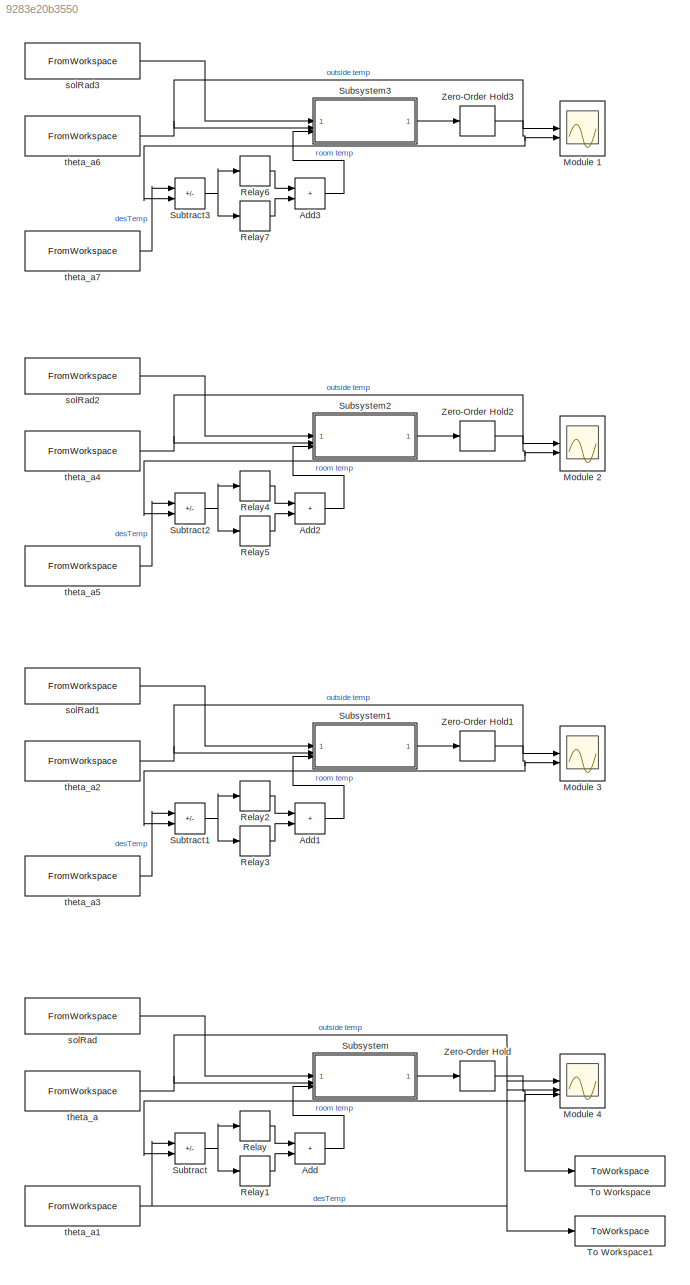
MODEL slx_9283e20b3550
KIND model
CONFIG AbsTol = auto
CONFIG EnableMultiTasking = off
CONFIG FixedStep = auto
CONFIG MaxStep = auto
CONFIG MinStep = auto
CONFIG RelTol = 1e-3
CONFIG SampleTimeConstraint = Unconstrained
CONFIG SolverName = VariableStepAuto
CONFIG StartTime = 0.0
CONFIG StopTime = H
BLOCK [Sum] Add
  IconShape = rectangular
BLOCK [Sum] Add1
  IconShape = rectangular
BLOCK [Sum] Add2
  IconShape = rectangular
BLOCK [Sum] Add3
  IconShape = rectangular
BLOCK [Scope] Module 1
  Floating = off
  NumInputPorts = 2
  ScopeSpecificationString = Simulink.scopes.TimeScopeBlockCfg('CurrentConfiguration', extmgr.ConfigurationSet(extmgr.Configuration('Core','General UI',true),extmgr.Configuration('Core','Source UI',true),extmgr.Configuration('Sources','WiredSimulink',true,'DataLoggingVariableName','ScopeData3'),extmgr.Configuration('Visuals','Time Domain',true,'SerializedDisplays',{struct('MinYLimReal','278.36508','MaxYLimReal','294.71425','Y...<+2009ch>
BLOCK [Scope] Module 2
  Floating = off
  NumInputPorts = 2
  ScopeSpecificationString = Simulink.scopes.TimeScopeBlockCfg('CurrentConfiguration', extmgr.ConfigurationSet(extmgr.Configuration('Core','General UI',true),extmgr.Configuration('Core','Source UI',true),extmgr.Configuration('Sources','WiredSimulink',true,'DataLoggingVariableName','ScopeData2'),extmgr.Configuration('Visuals','Time Domain',true,'SerializedDisplays',{struct('MinYLimReal','278.36508','MaxYLimReal','294.71425','Y...<+2009ch>
BLOCK [Scope] Module 3
  Floating = off
  NumInputPorts = 2
  ScopeSpecificationString = Simulink.scopes.TimeScopeBlockCfg('CurrentConfiguration', extmgr.ConfigurationSet(extmgr.Configuration('Core','General UI',true),extmgr.Configuration('Core','Source UI',true),extmgr.Configuration('Sources','WiredSimulink',true,'DataLoggingVariableName','ScopeData1'),extmgr.Configuration('Visuals','Time Domain',true,'SerializedDisplays',{struct('MinYLimReal','278.36017','MaxYLimReal','294.75849','Y...<+2009ch>
BLOCK [Scope] Module 4
  Floating = off
  NumInputPorts = 3
  ScopeSpecificationString = Simulink.scopes.TimeScopeBlockCfg('CurrentConfiguration', extmgr.ConfigurationSet(extmgr.Configuration('Core','General UI',true),extmgr.Configuration('Core','Source UI',true),extmgr.Configuration('Sources','WiredSimulink',true),extmgr.Configuration('Visuals','Time Domain',true,'SerializedDisplays',{struct('MinYLimReal','277.09302','MaxYLimReal','306.16283','YLabelReal','','MinYLimMag','277.09302',...<+1991ch>
BLOCK [Relay] Relay
  OffOutputValue = q_star
  OffSwitchValue = 1
  OnOutputValue = -q_star
  OnSwitchValue = 1
BLOCK [Relay] Relay1
  OffOutputValue = q_star/2
  OffSwitchValue = -1
  OnOutputValue = -q_star/2
  OnSwitchValue = -1
BLOCK [Relay] Relay2
  OffOutputValue = q_star
  OffSwitchValue = 1
  OnOutputValue = -q_star
  OnSwitchValue = 1
BLOCK [Relay] Relay3
  OffOutputValue = q_star/2
  OffSwitchValue = -1
  OnOutputValue = -q_star/2
  OnSwitchValue = -1
BLOCK [Relay] Relay4
  OffOutputValue = q_star
  OffSwitchValue = 1
  OnOutputValue = -q_star
  OnSwitchValue = 1
BLOCK [Relay] Relay5
  OffOutputValue = q_star/2
  OffSwitchValue = -1
  OnOutputValue = -q_star/2
  OnSwitchValue = -1
BLOCK [Relay] Relay6
  OffOutputValue = q_star
  OffSwitchValue = 1
  OnOutputValue = -q_star
  OnSwitchValue = 1
BLOCK [Relay] Relay7
  OffOutputValue = q_star/2
  OffSwitchValue = -1
  OnOutputValue = -q_star/2
  OnSwitchValue = -1
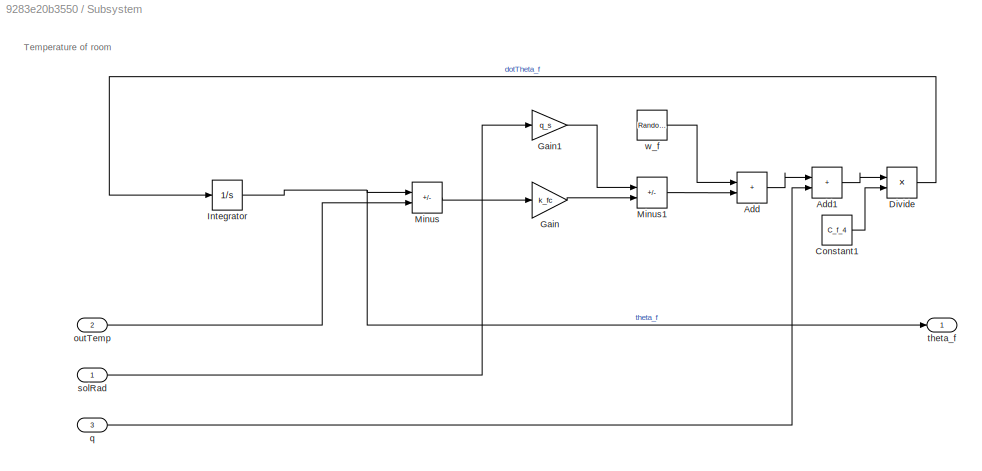
BLOCK [SubSystem] Subsystem
BLOCK [Sum] Subsystem/Add
  IconShape = rectangular
BLOCK [Sum] Subsystem/Add1
  IconShape = rectangular
BLOCK [Constant] Subsystem/Constant1
  Value = C_f_4
BLOCK [Product] Subsystem/Divide
  Inputs = */
BLOCK [Gain] Subsystem/Gain
  Gain = k_fc
BLOCK [Gain] Subsystem/Gain1
  Gain = q_s
BLOCK [Integrator] Subsystem/Integrator
  InitialCondition = theta0_f
BLOCK [Sum] Subsystem/Minus
  IconShape = rectangular
  Inputs = +-
BLOCK [Sum] Subsystem/Minus1
  IconShape = rectangular
  Inputs = +-
BLOCK [Inport] Subsystem/outTemp
  Port = 2
BLOCK [Inport] Subsystem/q
  Port = 3
BLOCK [Inport] Subsystem/solRad
BLOCK [Outport] Subsystem/theta_f
BLOCK [RandomNumber] Subsystem/w_f
  SampleTime = Ts
  Variance = var_wf
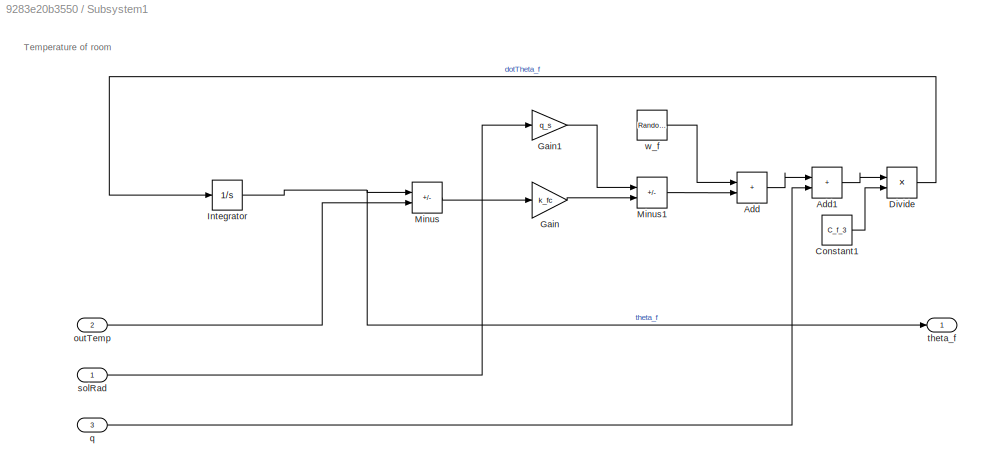
BLOCK [SubSystem] Subsystem1
BLOCK [Sum] Subsystem1/Add
  IconShape = rectangular
BLOCK [Sum] Subsystem1/Add1
  IconShape = rectangular
BLOCK [Constant] Subsystem1/Constant1
  Value = C_f_3
BLOCK [Product] Subsystem1/Divide
  Inputs = */
BLOCK [Gain] Subsystem1/Gain
  Gain = k_fc
BLOCK [Gain] Subsystem1/Gain1
  Gain = q_s
BLOCK [Integrator] Subsystem1/Integrator
  InitialCondition = theta0_f
BLOCK [Sum] Subsystem1/Minus
  IconShape = rectangular
  Inputs = +-
BLOCK [Sum] Subsystem1/Minus1
  IconShape = rectangular
  Inputs = +-
BLOCK [Inport] Subsystem1/outTemp
  Port = 2
BLOCK [Inport] Subsystem1/q
  Port = 3
BLOCK [Inport] Subsystem1/solRad
BLOCK [Outport] Subsystem1/theta_f
BLOCK [RandomNumber] Subsystem1/w_f
  SampleTime = Ts
  Variance = var_wf
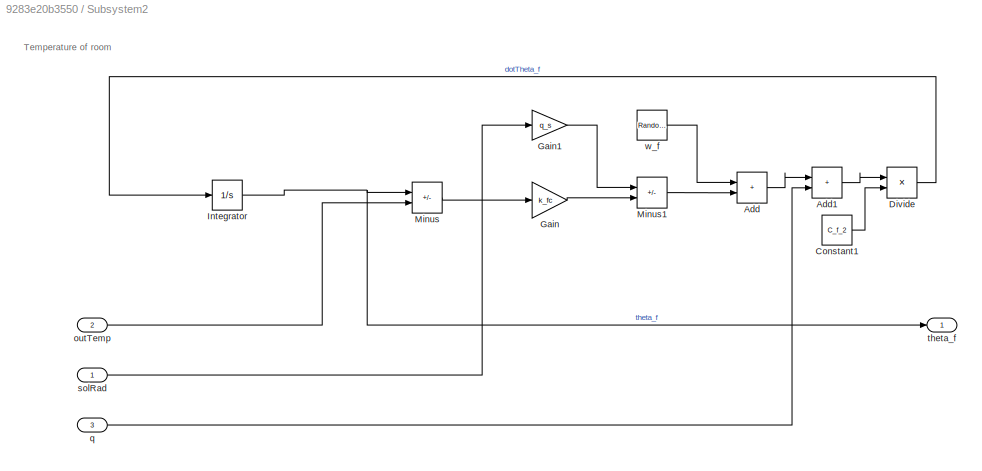
BLOCK [SubSystem] Subsystem2
BLOCK [Sum] Subsystem2/Add
  IconShape = rectangular
BLOCK [Sum] Subsystem2/Add1
  IconShape = rectangular
BLOCK [Constant] Subsystem2/Constant1
  Value = C_f_2
BLOCK [Product] Subsystem2/Divide
  Inputs = */
BLOCK [Gain] Subsystem2/Gain
  Gain = k_fc
BLOCK [Gain] Subsystem2/Gain1
  Gain = q_s
BLOCK [Integrator] Subsystem2/Integrator
  InitialCondition = theta0_f
BLOCK [Sum] Subsystem2/Minus
  IconShape = rectangular
  Inputs = +-
BLOCK [Sum] Subsystem2/Minus1
  IconShape = rectangular
  Inputs = +-
BLOCK [Inport] Subsystem2/outTemp
  Port = 2
BLOCK [Inport] Subsystem2/q
  Port = 3
BLOCK [Inport] Subsystem2/solRad
BLOCK [Outport] Subsystem2/theta_f
BLOCK [RandomNumber] Subsystem2/w_f
  SampleTime = Ts
  Variance = var_wf
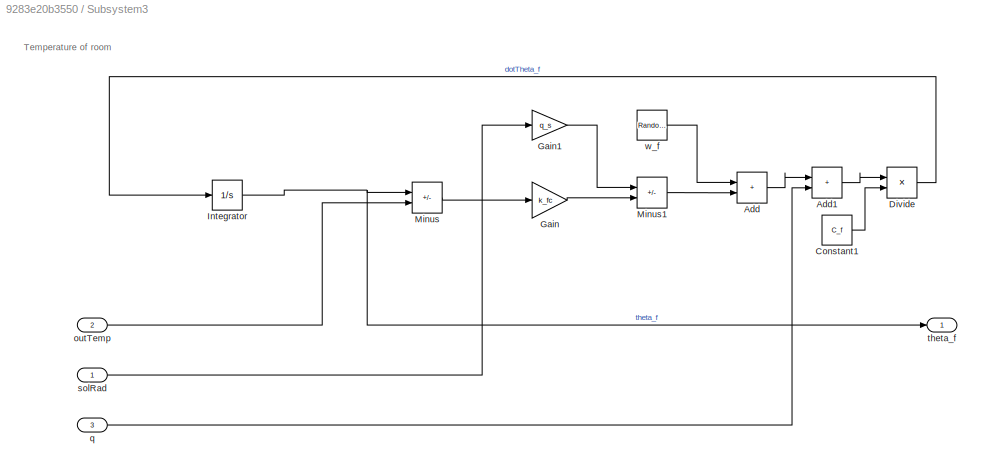
BLOCK [SubSystem] Subsystem3
BLOCK [Sum] Subsystem3/Add
  IconShape = rectangular
BLOCK [Sum] Subsystem3/Add1
  IconShape = rectangular
BLOCK [Constant] Subsystem3/Constant1
  Value = C_f
BLOCK [Product] Subsystem3/Divide
  Inputs = */
BLOCK [Gain] Subsystem3/Gain
  Gain = k_fc
BLOCK [Gain] Subsystem3/Gain1
  Gain = q_s
BLOCK [Integrator] Subsystem3/Integrator
  InitialCondition = theta0_f
BLOCK [Sum] Subsystem3/Minus
  IconShape = rectangular
  Inputs = +-
BLOCK [Sum] Subsystem3/Minus1
  IconShape = rectangular
  Inputs = +-
BLOCK [Inport] Subsystem3/outTemp
  Port = 2
BLOCK [Inport] Subsystem3/q
  Port = 3
BLOCK [Inport] Subsystem3/solRad
BLOCK [Outport] Subsystem3/theta_f
BLOCK [RandomNumber] Subsystem3/w_f
  SampleTime = Ts
  Variance = var_wf
BLOCK [Sum] Subtract
  IconShape = rectangular
  Inputs = -+
BLOCK [Sum] Subtract1
  IconShape = rectangular
  Inputs = -+
BLOCK [Sum] Subtract2
  IconShape = rectangular
  Inputs = -+
BLOCK [Sum] Subtract3
  IconShape = rectangular
  Inputs = -+
BLOCK [ToWorkspace] To Workspace
  FixptAsFi = on
  MaxDataPoints = inf
  SampleTime = -1
  VariableName = RelayActualTemperature
BLOCK [ToWorkspace] To Workspace1
  FixptAsFi = on
  MaxDataPoints = inf
  SampleTime = -1
  VariableName = RelayDesiredTemperature
BLOCK [ZeroOrderHold] Zero-Order Hold
  SampleTime = Ts
BLOCK [ZeroOrderHold] Zero-Order Hold1
  SampleTime = Ts
BLOCK [ZeroOrderHold] Zero-Order Hold2
  SampleTime = Ts
BLOCK [ZeroOrderHold] Zero-Order Hold3
  SampleTime = Ts
BLOCK [FromWorkspace] solRad
  VariableName = timeseriesSolRad
BLOCK [FromWorkspace] solRad1
  VariableName = timeseriesSolRad
BLOCK [FromWorkspace] solRad2
  VariableName = timeseriesSolRad
BLOCK [FromWorkspace] solRad3
  VariableName = timeseriesSolRad
BLOCK [FromWorkspace] theta_a
  SampleTime = Ts
  VariableName = timeseriesOutTemp
BLOCK [FromWorkspace] theta_a1
  SampleTime = Ts
  VariableName = timeseriesDesTemp
BLOCK [FromWorkspace] theta_a2
  SampleTime = Ts
  VariableName = timeseriesOutTemp
BLOCK [FromWorkspace] theta_a3
  SampleTime = Ts
  VariableName = timeseriesOutTemp
BLOCK [FromWorkspace] theta_a4
  SampleTime = Ts
  VariableName = timeseriesOutTemp
BLOCK [FromWorkspace] theta_a5
  SampleTime = Ts
  VariableName = timeseriesOutTemp
BLOCK [FromWorkspace] theta_a6
  SampleTime = Ts
  VariableName = timeseriesOutTemp
BLOCK [FromWorkspace] theta_a7
  SampleTime = Ts
  VariableName = timeseriesOutTemp
ANNOTATION Subsystem: Temperature of room
ANNOTATION Subsystem1: Temperature of room
ANNOTATION Subsystem2: Temperature of room
ANNOTATION Subsystem3: Temperature of room
LINE Add1:1 -> Subsystem1:3
LINE Add2:1 -> Subsystem2:3
LINE Add3:1 -> Subsystem3:3
LINE Add:1 -> Subsystem:3
LINE Relay1:1 -> Add:2
LINE Relay2:1 -> Add1:1
LINE Relay3:1 -> Add1:2
LINE Relay4:1 -> Add2:1
LINE Relay5:1 -> Add2:2
LINE Relay6:1 -> Add3:1
LINE Relay7:1 -> Add3:2
LINE Relay:1 -> Add:1
LINE Subsystem/Add1:1 -> Subsystem/Divide:1
LINE Subsystem/Add:1 -> Subsystem/Add1:1
LINE Subsystem/Constant1:1 -> Subsystem/Divide:2
LINE Subsystem/Divide:1 -> Subsystem/Integrator:1
LINE Subsystem/Gain1:1 -> Subsystem/Minus1:1
LINE Subsystem/Gain:1 -> Subsystem/Minus1:2
NET Subsystem/Integrator:1 -> Subsystem/Minus:1, Subsystem/theta_f:1
LINE Subsystem/Minus1:1 -> Subsystem/Add:2
LINE Subsystem/Minus:1 -> Subsystem/Gain:1
LINE Subsystem/outTemp:1 -> Subsystem/Minus:2
LINE Subsystem/q:1 -> Subsystem/Add1:2
LINE Subsystem/solRad:1 -> Subsystem/Gain1:1
LINE Subsystem/w_f:1 -> Subsystem/Add:1
LINE Subsystem1/Add1:1 -> Subsystem1/Divide:1
LINE Subsystem1/Add:1 -> Subsystem1/Add1:1
LINE Subsystem1/Constant1:1 -> Subsystem1/Divide:2
LINE Subsystem1/Divide:1 -> Subsystem1/Integrator:1
LINE Subsystem1/Gain1:1 -> Subsystem1/Minus1:1
LINE Subsystem1/Gain:1 -> Subsystem1/Minus1:2
NET Subsystem1/Integrator:1 -> Subsystem1/Minus:1, Subsystem1/theta_f:1
LINE Subsystem1/Minus1:1 -> Subsystem1/Add:2
LINE Subsystem1/Minus:1 -> Subsystem1/Gain:1
LINE Subsystem1/outTemp:1 -> Subsystem1/Minus:2
LINE Subsystem1/q:1 -> Subsystem1/Add1:2
LINE Subsystem1/solRad:1 -> Subsystem1/Gain1:1
LINE Subsystem1/w_f:1 -> Subsystem1/Add:1
LINE Subsystem1:1 -> Zero-Order Hold1:1
LINE Subsystem2/Add1:1 -> Subsystem2/Divide:1
LINE Subsystem2/Add:1 -> Subsystem2/Add1:1
LINE Subsystem2/Constant1:1 -> Subsystem2/Divide:2
LINE Subsystem2/Divide:1 -> Subsystem2/Integrator:1
LINE Subsystem2/Gain1:1 -> Subsystem2/Minus1:1
LINE Subsystem2/Gain:1 -> Subsystem2/Minus1:2
NET Subsystem2/Integrator:1 -> Subsystem2/Minus:1, Subsystem2/theta_f:1
LINE Subsystem2/Minus1:1 -> Subsystem2/Add:2
LINE Subsystem2/Minus:1 -> Subsystem2/Gain:1
LINE Subsystem2/outTemp:1 -> Subsystem2/Minus:2
LINE Subsystem2/q:1 -> Subsystem2/Add1:2
LINE Subsystem2/solRad:1 -> Subsystem2/Gain1:1
LINE Subsystem2/w_f:1 -> Subsystem2/Add:1
LINE Subsystem2:1 -> Zero-Order Hold2:1
LINE Subsystem3/Add1:1 -> Subsystem3/Divide:1
LINE Subsystem3/Add:1 -> Subsystem3/Add1:1
LINE Subsystem3/Constant1:1 -> Subsystem3/Divide:2
LINE Subsystem3/Divide:1 -> Subsystem3/Integrator:1
LINE Subsystem3/Gain1:1 -> Subsystem3/Minus1:1
LINE Subsystem3/Gain:1 -> Subsystem3/Minus1:2
NET Subsystem3/Integrator:1 -> Subsystem3/Minus:1, Subsystem3/theta_f:1
LINE Subsystem3/Minus1:1 -> Subsystem3/Add:2
LINE Subsystem3/Minus:1 -> Subsystem3/Gain:1
LINE Subsystem3/outTemp:1 -> Subsystem3/Minus:2
LINE Subsystem3/q:1 -> Subsystem3/Add1:2
LINE Subsystem3/solRad:1 -> Subsystem3/Gain1:1
LINE Subsystem3/w_f:1 -> Subsystem3/Add:1
LINE Subsystem3:1 -> Zero-Order Hold3:1
LINE Subsystem:1 -> Zero-Order Hold:1
NET Subtract1:1 -> Relay2:1, Relay3:1
NET Subtract2:1 -> Relay4:1, Relay5:1
NET Subtract3:1 -> Relay6:1, Relay7:1
NET Subtract:1 -> Relay1:1, Relay:1
NET Zero-Order Hold1:1 -> Module 3:2, Subtract1:2
NET Zero-Order Hold2:1 -> Module 2:2, Subtract2:2
NET Zero-Order Hold3:1 -> Module 1:2, Subtract3:2
NET Zero-Order Hold:1 -> Module 4:3, Subtract:2, To Workspace:1
LINE solRad1:1 -> Subsystem1:1
LINE solRad2:1 -> Subsystem2:1
LINE solRad3:1 -> Subsystem3:1
LINE solRad:1 -> Subsystem:1
NET theta_a1:1 -> Module 4:2, Subtract:1, To Workspace1:1
NET theta_a2:1 -> Module 3:1, Subsystem1:2
LINE theta_a3:1 -> Subtract1:1
NET theta_a4:1 -> Module 2:1, Subsystem2:2
LINE theta_a5:1 -> Subtract2:1
NET theta_a6:1 -> Module 1:1, Subsystem3:2
LINE theta_a7:1 -> Subtract3:1
NET theta_a:1 -> Module 4:1, Subsystem:2
note: NET lines group one-source signal fan-out (src -> all destinations, sorted); 1:1 wires keep LINE
